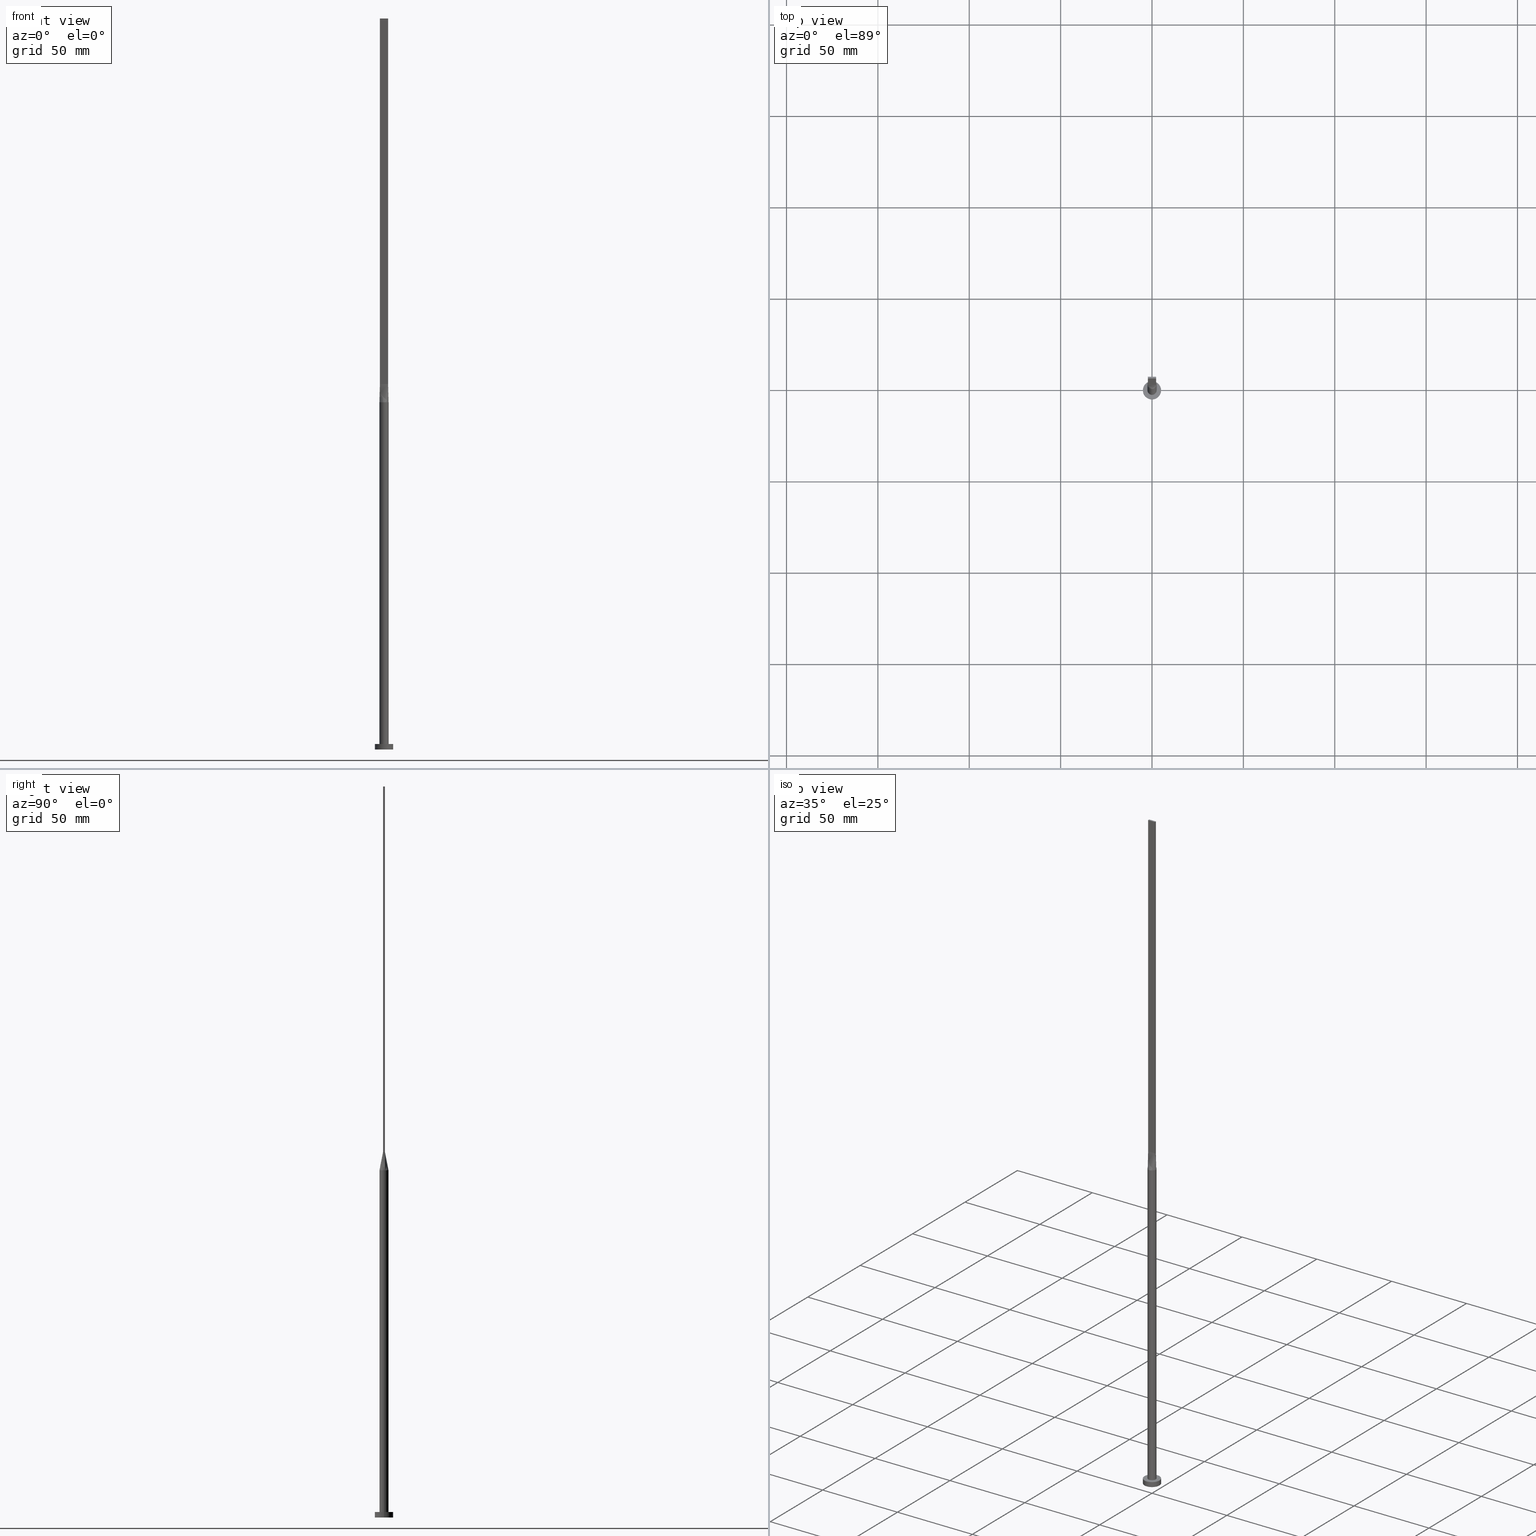
[diagram: canonical four-view strip — front | top / right | iso, engineering-drawing reading convention]
A machine part, canonical four-view strip (front | top / right | iso — engineering-drawing reading convention). The complete STEP part file that produces these views, byte-faithful:
ISO-10303-21;
HEADER;
FILE_DESCRIPTION (( 'STEP AP203' ),
    '1' );
FILE_NAME ('1aa9.STEP',
    '2023-02-13T12:33:52',
    ( '' ),
    ( '' ),
    'SwSTEP 2.0',
    'SolidWorks 2019',
    '' );
FILE_SCHEMA (( 'CONFIG_CONTROL_DESIGN' ));
ENDSEC;

DATA;
#1 = PERSON_AND_ORGANIZATION ( #420, #23 ) ;
#2 = CARTESIAN_POINT ( 'NONE',  ( 1.935644909179608186, 1.608159499248285051, 189.9999999999999432 ) ) ;
#3 = ORIENTED_EDGE ( 'NONE', *, *, #400, .T. ) ;
#4 = VECTOR ( 'NONE', #328, 1000.000000000000114 ) ;
#5 = APPROVAL_ROLE ( '' ) ;
#6 = CARTESIAN_POINT ( 'NONE',  ( 2.249999999999999556, -0.1666666666666666574, 200.0000000000000000 ) ) ;
#7 = ORIENTED_EDGE ( 'NONE', *, *, #525, .T. ) ;
#8 = CARTESIAN_POINT ( 'NONE',  ( -1.312500000000000888, 0.5000000000000002220, 200.0000000000000000 ) ) ;
#9 = ORIENTED_EDGE ( 'NONE', *, *, #10, .T. ) ;
#10 = EDGE_CURVE ( 'NONE', #188, #37, #457, .T. ) ;
#11 = CARTESIAN_POINT ( 'NONE',  ( -2.249999999999999556, 0.5000000000000002220, 200.0000000000000000 ) ) ;
#12 = ORIENTED_EDGE ( 'NONE', *, *, #245, .T. ) ;
#13 = FACE_OUTER_BOUND ( 'NONE', #323, .T. ) ;
#14 =( GEOMETRIC_REPRESENTATION_CONTEXT ( 3 ) GLOBAL_UNCERTAINTY_ASSIGNED_CONTEXT ( ( #272 ) ) GLOBAL_UNIT_ASSIGNED_CONTEXT ( ( #439, #162, #123 ) ) REPRESENTATION_CONTEXT ( 'NONE', 'WORKASPACE' ) );
#15 = EDGE_LOOP ( 'NONE', ( #265, #181, #521, #360 ) ) ;
#16 = CARTESIAN_POINT ( 'NONE',  ( 0.000000000000000000, 0.000000000000000000, 3.000000000000000000 ) ) ;
#17 = ADVANCED_FACE ( 'NONE', ( #54 ), #324, .T. ) ;
#18 = DIRECTION ( 'NONE',  ( 0.000000000000000000, -1.000000000000000000, 0.000000000000000000 ) ) ;
#19 = CARTESIAN_POINT ( 'NONE',  ( -2.249999999999999556, 0.5000000000000002220, 400.0000000000000000 ) ) ;
#20 = CARTESIAN_POINT ( 'NONE',  ( 1.935644909179608852, -1.608159499248284829, 190.0000000000000000 ) ) ;
#21 = DIRECTION ( 'NONE',  ( 1.000000000000000000, 0.000000000000000000, -0.000000000000000000 ) ) ;
#22 = DIRECTION ( 'NONE',  ( 0.000000000000000000, -0.000000000000000000, -1.000000000000000000 ) ) ;
#23 = ORGANIZATION ( 'NEUR�EN�', 'NEUR�EN�', '' ) ;
#24 = CARTESIAN_POINT ( 'NONE',  ( 0.000000000000000000, 0.000000000000000000, 190.0000000000000000 ) ) ;
#25 = DIRECTION ( 'NONE',  ( 0.000000000000000000, 0.000000000000000000, 1.000000000000000000 ) ) ;
#26 = B_SPLINE_SURFACE_WITH_KNOTS ( 'NONE', 3, 1, ( 
 ( #499, #365 ),
 ( #141, #535 ),
 ( #539, #455 ),
 ( #491, #91 ),
 ( #2, #451 ),
 ( #497, #53 ),
 ( #93, #319 ),
 ( #281, #48 ),
 ( #99, #275 ),
 ( #278, #232 ),
 ( #96, #459 ),
 ( #225, #362 ),
 ( #412, #270 ),
 ( #410, #8 ),
 ( #180, #56 ),
 ( #138, #234 ),
 ( #146, #102 ),
 ( #187, #11 ) ),
 .UNSPECIFIED., .F., .F., .F.,
 ( 4, 2, 2, 2, 2, 2, 2, 2, 4 ),
 ( 2, 2 ),
 ( 0.000000000000000000, 0.1249999999999999722, 0.2500000000000000000, 0.3750000000000000000, 0.5000000000000001110, 0.6250000000000001110, 0.7500000000000000000, 0.8750000000000000000, 1.000000000000000000 ),
 ( 0.000000000000000000, 1.000000000000000000 ),
 .UNSPECIFIED. ) ;
#27 = PRODUCT_DEFINITION ( 'NEZN�M�', '', #302, #82 ) ;
#28 = CARTESIAN_POINT ( 'NONE',  ( 0.000000000000000000, 0.000000000000000000, 0.000000000000000000 ) ) ;
#29 = FACE_BOUND ( 'NONE', #574, .T. ) ;
#30 = PERSON_AND_ORGANIZATION_ROLE ( 'design_owner' ) ;
#31 = CARTESIAN_POINT ( 'NONE',  ( -1.519400572660313253, 2.006070808634367264, 190.0000000000000284 ) ) ;
#32 = AXIS2_PLACEMENT_3D ( 'NONE', #243, #18, #22 ) ;
#33 = CIRCLE ( 'NONE', #90, 2.500000000000000000 ) ;
#34 = PERSON_AND_ORGANIZATION_ROLE ( 'creator' ) ;
#35 = DIRECTION ( 'NONE',  ( -0.000000000000000000, -0.000000000000000000, -1.000000000000000000 ) ) ;
#36 = EDGE_CURVE ( 'NONE', #103, #268, #274, .T. ) ;
#37 = VERTEX_POINT ( 'NONE', #342 ) ;
#38 = DIRECTION ( 'NONE',  ( 7.228014483236697048E-17, 1.000000000000000000, -0.000000000000000000 ) ) ;
#39 = EDGE_LOOP ( 'NONE', ( #304, #276, #190, #85 ) ) ;
#40 = COORDINATED_UNIVERSAL_TIME_OFFSET ( 1, 0, .AHEAD. ) ;
#41 = DIRECTION ( 'NONE',  ( -0.000000000000000000, -0.000000000000000000, -1.000000000000000000 ) ) ;
#42 = VECTOR ( 'NONE', #297, 1000.000000000000000 ) ;
#43 = APPROVAL_PERSON_ORGANIZATION ( #1, #101, #5 ) ;
#44 = COORDINATED_UNIVERSAL_TIME_OFFSET ( 1, 0, .AHEAD. ) ;
#45 = CARTESIAN_POINT ( 'NONE',  ( 1.935644909179608186, 1.608159499248285051, 189.9999999999999432 ) ) ;
#46 = ORIENTED_EDGE ( 'NONE', *, *, #400, .F. ) ;
#47 = CC_DESIGN_PERSON_AND_ORGANIZATION_ASSIGNMENT ( #391, #176, ( #302 ) ) ;
#48 = CARTESIAN_POINT ( 'NONE',  ( 0.3749999999999979461, 0.5000000000000002220, 200.0000000000000000 ) ) ;
#49 = ORIENTED_EDGE ( 'NONE', *, *, #10, .F. ) ;
#50 = CARTESIAN_POINT ( 'NONE',  ( 2.250000000000000000, -0.3333333333333332593, 200.0000000000000000 ) ) ;
#51 = CARTESIAN_POINT ( 'NONE',  ( -2.479683336734391563, 0.3658555563113465858, 190.0000000000000000 ) ) ;
#52 = APPROVAL_PERSON_ORGANIZATION ( #299, #150, #576 ) ;
#53 = CARTESIAN_POINT ( 'NONE',  ( 0.9374999999999978906, 0.5000000000000002220, 200.0000000000000000 ) ) ;
#54 = FACE_OUTER_BOUND ( 'NONE', #159, .T. ) ;
#55 = EDGE_CURVE ( 'NONE', #363, #103, #251, .T. ) ;
#56 = CARTESIAN_POINT ( 'NONE',  ( -1.500000000000000666, 0.5000000000000002220, 200.0000000000000000 ) ) ;
#57 = ORIENTED_EDGE ( 'NONE', *, *, #55, .F. ) ;
#58 = PERSON_AND_ORGANIZATION_ROLE ( 'classification_officer' ) ;
#59 = DIRECTION ( 'NONE',  ( 1.000000000000000000, 0.000000000000000000, 0.000000000000000000 ) ) ;
#60 = ORIENTED_EDGE ( 'NONE', *, *, #463, .F. ) ;
#61 = ADVANCED_FACE ( 'NONE', ( #375 ), #421, .F. ) ;
#62 = CYLINDRICAL_SURFACE ( 'NONE', #575, 2.500000000000000000 ) ;
#63 = CIRCLE ( 'NONE', #387, 2.500000000000000000 ) ;
#64 = CARTESIAN_POINT ( 'NONE',  ( -2.440467650459882343, -0.5423261445466400765, 190.0000000000000000 ) ) ;
#65 = CARTESIAN_POINT ( 'NONE',  ( 0.000000000000000000, 0.000000000000000000, 190.0000000000000000 ) ) ;
#66 = CARTESIAN_POINT ( 'NONE',  ( -0.6674771052374477431, -2.430579781493059865, 190.0000000000000284 ) ) ;
#67 = DIRECTION ( 'NONE',  ( -0.000000000000000000, -0.000000000000000000, -1.000000000000000000 ) ) ;
#68 = CARTESIAN_POINT ( 'NONE',  ( -2.249999999999999556, 0.5000000000000002220, 200.0000000000000000 ) ) ;
#69 = DIRECTION ( 'NONE',  ( 1.000000000000000000, 0.000000000000000000, 0.000000000000000000 ) ) ;
#70 = CARTESIAN_POINT ( 'NONE',  ( 0.000000000000000000, 0.000000000000000000, 190.0000000000000000 ) ) ;
#71 = AXIS2_PLACEMENT_3D ( 'NONE', #392, #169, #260 ) ;
#72 = ADVANCED_FACE ( 'NONE', ( #29, #428 ), #298, .T. ) ;
#73 = CARTESIAN_POINT ( 'NONE',  ( 2.249999999999999556, 0.5000000000000002220, 200.0000000000000000 ) ) ;
#74 = CARTESIAN_POINT ( 'NONE',  ( -1.935644909179609297, -1.608159499248284829, 190.0000000000000000 ) ) ;
#75 = CARTESIAN_POINT ( 'NONE',  ( -2.500000000000000000, 0.000000000000000000, 3.000000000000000000 ) ) ;
#76 = EDGE_CURVE ( 'NONE', #348, #122, #406, .T. ) ;
#77 = CARTESIAN_POINT ( 'NONE',  ( -2.249999999999999556, 0.5000000000000002220, 400.0000000000000000 ) ) ;
#78 = FACE_OUTER_BOUND ( 'NONE', #393, .T. ) ;
#79 = VECTOR ( 'NONE', #214, 1000.000000000000000 ) ;
#80 = CARTESIAN_POINT ( 'NONE',  ( -2.249999999999999556, 0.5000000000000002220, 400.0000000000000000 ) ) ;
#81 = ORIENTED_EDGE ( 'NONE', *, *, #236, .T. ) ;
#82 = DESIGN_CONTEXT ( 'detailed design', #445, 'design' ) ;
#83 = CALENDAR_DATE ( 2023, 13, 2 ) ;
#84 = CARTESIAN_POINT ( 'NONE',  ( 2.250000000000000000, -0.4999999999999997780, 400.0000000000000000 ) ) ;
#85 = ORIENTED_EDGE ( 'NONE', *, *, #166, .T. ) ;
#86 = APPROVAL_ROLE ( '' ) ;
#87 = CARTESIAN_POINT ( 'NONE',  ( -2.250000000000000000, -0.4999999999999994449, 400.0000000000000000 ) ) ;
#88 = ORIENTED_EDGE ( 'NONE', *, *, #76, .F. ) ;
#89 = EDGE_CURVE ( 'NONE', #405, #103, #479, .T. ) ;
#90 = AXIS2_PLACEMENT_3D ( 'NONE', #16, #200, #380 ) ;
#91 = CARTESIAN_POINT ( 'NONE',  ( 1.499999999999998446, 0.5000000000000002220, 200.0000000000000000 ) ) ;
#92 = ORIENTED_EDGE ( 'NONE', *, *, #269, .T. ) ;
#93 = CARTESIAN_POINT ( 'NONE',  ( 1.260416918790968843, 2.182794756967427752, 190.0000000000000000 ) ) ;
#94 = CARTESIAN_POINT ( 'NONE',  ( -2.250000000000000000, -0.4999999999999993339, 200.0000000000000000 ) ) ;
#95 = ADVANCED_FACE ( 'NONE', ( #204 ), #333, .T. ) ;
#96 = CARTESIAN_POINT ( 'NONE',  ( -0.6674771052374470770, 2.430579781493059421, 190.0000000000000000 ) ) ;
#97 = EDGE_LOOP ( 'NONE', ( #545, #223 ) ) ;
#98 = AXIS2_PLACEMENT_3D ( 'NONE', #399, #38, #177 ) ;
#99 = CARTESIAN_POINT ( 'NONE',  ( 0.3342381693191150416, 2.499999999999999556, 190.0000000000000000 ) ) ;
#100 = ORIENTED_EDGE ( 'NONE', *, *, #192, .T. ) ;
#101 = APPROVAL ( #578, 'NEUR�EN�' ) ;
#102 = CARTESIAN_POINT ( 'NONE',  ( -2.062499999999999556, 0.5000000000000002220, 200.0000000000000000 ) ) ;
#103 = VERTEX_POINT ( 'NONE', #68 ) ;
#104 = DIRECTION ( 'NONE',  ( -1.000000000000000000, 0.000000000000000000, 0.000000000000000000 ) ) ;
#105 = CARTESIAN_POINT ( 'NONE',  ( -2.479683336734392007, -0.3658555563113460307, 190.0000000000000000 ) ) ;
#106 = CC_DESIGN_PERSON_AND_ORGANIZATION_ASSIGNMENT ( #315, #58, ( #524 ) ) ;
#107 = VECTOR ( 'NONE', #41, 1000.000000000000000 ) ;
#108 = DIRECTION ( 'NONE',  ( -0.01904314058352513453, 0.004231809018561169533, 0.9998097071888962795 ) ) ;
#109 = AXIS2_PLACEMENT_3D ( 'NONE', #65, #512, #116 ) ;
#110 = CARTESIAN_POINT ( 'NONE',  ( -1.875000000000000444, -0.4999999999999995559, 200.0000000000000000 ) ) ;
#111 = DIRECTION ( 'NONE',  ( 1.000000000000000000, 0.000000000000000000, 0.000000000000000000 ) ) ;
#112 = CARTESIAN_POINT ( 'NONE',  ( 0.9374999999999997780, -0.4999999999999995559, 200.0000000000000000 ) ) ;
#113 = FACE_OUTER_BOUND ( 'NONE', #460, .T. ) ;
#114 = EDGE_CURVE ( 'NONE', #462, #405, #336, .T. ) ;
#115 = CARTESIAN_POINT ( 'NONE',  ( 2.093723281432890548, -1.388001797188530340, 190.0000000000000000 ) ) ;
#116 = DIRECTION ( 'NONE',  ( -1.000000000000000000, 0.000000000000000000, 0.000000000000000000 ) ) ;
#117 = CARTESIAN_POINT ( 'NONE',  ( -2.062500000000000000, -0.4999999999999995559, 200.0000000000000000 ) ) ;
#118 = CIRCLE ( 'NONE', #71, 5.000000000000000000 ) ;
#119 = DIRECTION ( 'NONE',  ( 1.000000000000000000, 0.000000000000000000, 0.000000000000000000 ) ) ;
#120 = CARTESIAN_POINT ( 'NONE',  ( -0.9375000000000006661, -0.4999999999999995559, 200.0000000000000000 ) ) ;
#121 = CARTESIAN_POINT ( 'NONE',  ( 2.249999999999999556, 0.5000000000000002220, 200.0000000000000000 ) ) ;
#122 = VERTEX_POINT ( 'NONE', #522 ) ;
#123 =( NAMED_UNIT ( * ) SI_UNIT ( $, .STERADIAN. ) SOLID_ANGLE_UNIT ( ) );
#124 = CARTESIAN_POINT ( 'NONE',  ( -1.260416918790968843, 2.182794756967428196, 190.0000000000000284 ) ) ;
#125 = AXIS2_PLACEMENT_3D ( 'NONE', #19, #221, #566 ) ;
#126 = ORIENTED_EDGE ( 'NONE', *, *, #571, .T. ) ;
#127 = PERSON_AND_ORGANIZATION ( #420, #23 ) ;
#128 = LINE ( 'NONE', #218, #434 ) ;
#129 = ORIENTED_EDGE ( 'NONE', *, *, #261, .T. ) ;
#130 = CARTESIAN_POINT ( 'NONE',  ( 0.000000000000000000, 0.000000000000000000, 3.000000000000000000 ) ) ;
#131 = PLANE ( 'NONE',  #210 ) ;
#132 = CC_DESIGN_PERSON_AND_ORGANIZATION_ASSIGNMENT ( #127, #30, ( #558 ) ) ;
#133 = EDGE_LOOP ( 'NONE', ( #357, #396, #81, #570, #484 ) ) ;
#134 = CARTESIAN_POINT ( 'NONE',  ( 2.500000000000000000, 3.061616997868383141E-16, 190.0000000000000000 ) ) ;
#135 = EDGE_LOOP ( 'NONE', ( #100, #12, #492, #438 ) ) ;
#136 = VECTOR ( 'NONE', #196, 1000.000000000000000 ) ;
#137 = VECTOR ( 'NONE', #481, 1000.000000000000114 ) ;
#138 = CARTESIAN_POINT ( 'NONE',  ( -2.323660390030918510, 0.9543733860570832173, 190.0000000000000284 ) ) ;
#139 = EDGE_LOOP ( 'NONE', ( #174, #403, #540, #320 ) ) ;
#140 = EDGE_CURVE ( 'NONE', #229, #188, #172, .T. ) ;
#141 = CARTESIAN_POINT ( 'NONE',  ( 2.396350003401058526, 0.7408555563113465858, 190.0000000000000568 ) ) ;
#142 = EDGE_LOOP ( 'NONE', ( #306, #179, #57, #215 ) ) ;
#143 = DIRECTION ( 'NONE',  ( 0.000000000000000000, 0.000000000000000000, 1.000000000000000000 ) ) ;
#144 = ORIENTED_EDGE ( 'NONE', *, *, #339, .T. ) ;
#145 = AXIS2_PLACEMENT_3D ( 'NONE', #371, #148, #358 ) ;
#146 = CARTESIAN_POINT ( 'NONE',  ( -2.396350003401058082, 0.7408555563113466969, 190.0000000000000284 ) ) ;
#147 = ORIENTED_EDGE ( 'NONE', *, *, #339, .F. ) ;
#148 = DIRECTION ( 'NONE',  ( 0.000000000000000000, 0.000000000000000000, 1.000000000000000000 ) ) ;
#149 = CARTESIAN_POINT ( 'NONE',  ( -2.249999999999999556, 0.5000000000000002220, 200.0000000000000000 ) ) ;
#150 = APPROVAL ( #397, 'NEUR�EN�' ) ;
#151 = DIRECTION ( 'NONE',  ( 0.000000000000000000, 0.000000000000000000, 1.000000000000000000 ) ) ;
#152 = DIRECTION ( 'NONE',  ( 0.000000000000000000, 0.000000000000000000, 1.000000000000000000 ) ) ;
#153 = VECTOR ( 'NONE', #562, 1000.000000000000000 ) ;
#154 = CARTESIAN_POINT ( 'NONE',  ( -2.440694335308545071, 0.5423767520433731004, 190.0000000000000000 ) ) ;
#155 = CARTESIAN_POINT ( 'NONE',  ( 0.6674771052374466329, -2.430579781493059865, 190.0000000000000000 ) ) ;
#156 = ADVANCED_FACE ( 'NONE', ( #577 ), #209, .T. ) ;
#157 = DIRECTION ( 'NONE',  ( 0.000000000000000000, 0.000000000000000000, 1.000000000000000000 ) ) ;
#158 = CARTESIAN_POINT ( 'NONE',  ( 2.396350003401058526, 0.7408555563113465858, 190.0000000000000568 ) ) ;
#159 = EDGE_LOOP ( 'NONE', ( #301, #279, #60, #220, #226 ) ) ;
#160 = PLANE ( 'NONE',  #509 ) ;
#161 = CARTESIAN_POINT ( 'NONE',  ( 0.1875000000000000555, -0.4999999999999995559, 200.0000000000000284 ) ) ;
#162 =( NAMED_UNIT ( * ) PLANE_ANGLE_UNIT ( ) SI_UNIT ( $, .RADIAN. ) );
#163 = VECTOR ( 'NONE', #373, 1000.000000000000000 ) ;
#164 = CARTESIAN_POINT ( 'NONE',  ( -1.312500000000000444, -0.4999999999999995559, 200.0000000000000000 ) ) ;
#165 = CIRCLE ( 'NONE', #293, 2.500000000000000000 ) ;
#166 = EDGE_CURVE ( 'NONE', #409, #363, #526, .T. ) ;
#167 = DIRECTION ( 'NONE',  ( -1.000000000000000000, 0.000000000000000000, 0.000000000000000000 ) ) ;
#168 = CARTESIAN_POINT ( 'NONE',  ( -2.440688158044365785, -0.5423755258804862089, 190.0000000000000000 ) ) ;
#169 = DIRECTION ( 'NONE',  ( 0.000000000000000000, 0.000000000000000000, 1.000000000000000000 ) ) ;
#170 = EDGE_LOOP ( 'NONE', ( #3, #527, #147, #488 ) ) ;
#171 = DIRECTION ( 'NONE',  ( -0.000000000000000000, -0.000000000000000000, -1.000000000000000000 ) ) ;
#172 = LINE ( 'NONE', #437, #79 ) ;
#173 = AXIS2_PLACEMENT_3D ( 'NONE', #472, #424, #291 ) ;
#174 = ORIENTED_EDGE ( 'NONE', *, *, #36, .T. ) ;
#175 = EDGE_CURVE ( 'NONE', #581, #496, #355, .T. ) ;
#176 = PERSON_AND_ORGANIZATION_ROLE ( 'creator' ) ;
#177 = DIRECTION ( 'NONE',  ( -1.000000000000000000, 7.228014483236697048E-17, 0.000000000000000000 ) ) ;
#178 = CARTESIAN_POINT ( 'NONE',  ( -2.093723281432891437, 1.388001797188529451, 190.0000000000000284 ) ) ;
#179 = ORIENTED_EDGE ( 'NONE', *, *, #89, .T. ) ;
#180 = CARTESIAN_POINT ( 'NONE',  ( -2.093723281432891437, 1.388001797188529451, 190.0000000000000284 ) ) ;
#181 = ORIENTED_EDGE ( 'NONE', *, *, #175, .T. ) ;
#182 = EDGE_CURVE ( 'NONE', #122, #465, #530, .T. ) ;
#183 = VECTOR ( 'NONE', #502, 1000.000000000000000 ) ;
#184 = CALENDAR_DATE ( 2023, 13, 2 ) ;
#185 = CARTESIAN_POINT ( 'NONE',  ( 2.499291179871646396, 0.1829277781556730154, 190.0000000000000000 ) ) ;
#186 = ORIENTED_EDGE ( 'NONE', *, *, #563, .F. ) ;
#187 = CARTESIAN_POINT ( 'NONE',  ( -2.440467650459882343, 0.5423261445466395214, 190.0000000000000000 ) ) ;
#188 = VERTEX_POINT ( 'NONE', #483 ) ;
#189 = DIRECTION ( 'NONE',  ( 0.000000000000000000, 0.000000000000000000, 1.000000000000000000 ) ) ;
#190 = ORIENTED_EDGE ( 'NONE', *, *, #192, .F. ) ;
#191 = VECTOR ( 'NONE', #35, 1000.000000000000000 ) ;
#192 = EDGE_CURVE ( 'NONE', #409, #449, #128, .T. ) ;
#193 = PLANE ( 'NONE',  #145 ) ;
#194 = ORIENTED_EDGE ( 'NONE', *, *, #280, .F. ) ;
#195 = CYLINDRICAL_SURFACE ( 'NONE', #516, 5.000000000000000000 ) ;
#196 = DIRECTION ( 'NONE',  ( -1.000000000000000000, -0.000000000000000000, -0.000000000000000000 ) ) ;
#197 = DIRECTION ( 'NONE',  ( 1.000000000000000000, 0.000000000000000000, 0.000000000000000000 ) ) ;
#198 = CARTESIAN_POINT ( 'NONE',  ( 1.312499999999999778, -0.4999999999999996669, 200.0000000000000000 ) ) ;
#199 = VECTOR ( 'NONE', #108, 1000.000000000000114 ) ;
#200 = DIRECTION ( 'NONE',  ( 0.000000000000000000, 0.000000000000000000, 1.000000000000000000 ) ) ;
#201 = CARTESIAN_POINT ( 'NONE',  ( -0.3750000000000002220, -0.4999999999999995559, 200.0000000000000000 ) ) ;
#202 = CC_DESIGN_DATE_AND_TIME_ASSIGNMENT ( #237, #458, ( #524 ) ) ;
#203 = CARTESIAN_POINT ( 'NONE',  ( 5.000000000000000000, 6.123233995736766282E-16, 0.000000000000000000 ) ) ;
#204 = FACE_OUTER_BOUND ( 'NONE', #170, .T. ) ;
#205 = CARTESIAN_POINT ( 'NONE',  ( 0.000000000000000000, 0.000000000000000000, 190.0000000000000000 ) ) ;
#206 = DIRECTION ( 'NONE',  ( -4.336808689942019708E-16, -1.000000000000000000, 0.000000000000000000 ) ) ;
#207 = LINE ( 'NONE', #77, #42 ) ;
#208 = AXIS2_PLACEMENT_3D ( 'NONE', #248, #25, #549 ) ;
#209 = CYLINDRICAL_SURFACE ( 'NONE', #256, 5.000000000000000000 ) ;
#210 = AXIS2_PLACEMENT_3D ( 'NONE', #84, #308, #489 ) ;
#211 = DATE_AND_TIME ( #480, #378 ) ;
#212 = CARTESIAN_POINT ( 'NONE',  ( -5.000000000000000000, 0.000000000000000000, 0.000000000000000000 ) ) ;
#213 = CALENDAR_DATE ( 2023, 13, 2 ) ;
#214 = DIRECTION ( 'NONE',  ( 1.000000000000000000, -7.228014483236697048E-17, 0.000000000000000000 ) ) ;
#215 = ORIENTED_EDGE ( 'NONE', *, *, #236, .F. ) ;
#216 = ADVANCED_FACE ( 'NONE', ( #78 ), #305, .F. ) ;
#217 = MECHANICAL_CONTEXT ( 'NONE', #414, 'mechanical' ) ;
#218 = CARTESIAN_POINT ( 'NONE',  ( 2.249999999999999556, 0.5000000000000002220, 400.0000000000000000 ) ) ;
#219 = AXIS2_PLACEMENT_3D ( 'NONE', #28, #385, #69 ) ;
#220 = ORIENTED_EDGE ( 'NONE', *, *, #36, .F. ) ;
#221 = DIRECTION ( 'NONE',  ( 1.000000000000000000, -4.336808689942020201E-16, 0.000000000000000000 ) ) ;
#222 = CARTESIAN_POINT ( 'NONE',  ( 1.260416918790968843, 2.182794756967427752, 190.0000000000000000 ) ) ;
#223 = ORIENTED_EDGE ( 'NONE', *, *, #318, .T. ) ;
#224 = ADVANCED_FACE ( 'NONE', ( #486 ), #131, .F. ) ;
#225 = CARTESIAN_POINT ( 'NONE',  ( -1.260416918790968843, 2.182794756967428196, 190.0000000000000284 ) ) ;
#226 = ORIENTED_EDGE ( 'NONE', *, *, #89, .F. ) ;
#227 = DATE_AND_TIME ( #231, #379 ) ;
#228 = FACE_OUTER_BOUND ( 'NONE', #133, .T. ) ;
#229 = VERTEX_POINT ( 'NONE', #87 ) ;
#230 = APPROVAL_PERSON_ORGANIZATION ( #266, #296, #86 ) ;
#231 = CALENDAR_DATE ( 2023, 13, 2 ) ;
#232 = CARTESIAN_POINT ( 'NONE',  ( -0.1875000000000020539, 0.5000000000000002220, 200.0000000000000000 ) ) ;
#233 = CARTESIAN_POINT ( 'NONE',  ( -2.499291179871646840, -0.1829277781556729043, 190.0000000000000000 ) ) ;
#234 = CARTESIAN_POINT ( 'NONE',  ( -1.875000000000000000, 0.5000000000000002220, 200.0000000000000000 ) ) ;
#235 = ORIENTED_EDGE ( 'NONE', *, *, #487, .F. ) ;
#236 = EDGE_CURVE ( 'NONE', #462, #363, #448, .T. ) ;
#237 = DATE_AND_TIME ( #184, #277 ) ;
#238 = CARTESIAN_POINT ( 'NONE',  ( 2.440706242928429415, -0.5423794613208688942, 190.0000000000000000 ) ) ;
#239 = B_SPLINE_SURFACE_WITH_KNOTS ( 'NONE', 3, 1, ( 
 ( #495, #273 ),
 ( #453, #50 ),
 ( #407, #6 ),
 ( #185, #316 ),
 ( #294, #376 ),
 ( #467, #73 ) ),
 .UNSPECIFIED., .F., .F., .F.,
 ( 4, 2, 4 ),
 ( 2, 2 ),
 ( 0.000000000000000000, 0.5000000000000000000, 1.000000000000000000 ),
 ( 0.000000000000000000, 1.000000000000000000 ),
 .UNSPECIFIED. ) ;
#240 = VERTEX_POINT ( 'NONE', #75 ) ;
#241 = AXIS2_PLACEMENT_3D ( 'NONE', #548, #151, #506 ) ;
#242 = CARTESIAN_POINT ( 'NONE',  ( -5.000000000000000000, 0.000000000000000000, 3.000000000000000000 ) ) ;
#243 = CARTESIAN_POINT ( 'NONE',  ( 2.249999999999999556, 0.5000000000000002220, 400.0000000000000000 ) ) ;
#244 = FACE_OUTER_BOUND ( 'NONE', #139, .T. ) ;
#245 = EDGE_CURVE ( 'NONE', #449, #229, #520, .T. ) ;
#246 = CARTESIAN_POINT ( 'NONE',  ( 0.7499999999999996669, -0.4999999999999995559, 200.0000000000000000 ) ) ;
#247 = CYLINDRICAL_SURFACE ( 'NONE', #109, 2.500000000000000000 ) ;
#248 = CARTESIAN_POINT ( 'NONE',  ( 0.000000000000000000, 0.000000000000000000, 3.000000000000000000 ) ) ;
#249 = AXIS2_PLACEMENT_3D ( 'NONE', #461, #189, #59 ) ;
#250 = DIRECTION ( 'NONE',  ( 0.000000000000000000, 0.000000000000000000, 1.000000000000000000 ) ) ;
#251 = LINE ( 'NONE', #511, #136 ) ;
#252 = CARTESIAN_POINT ( 'NONE',  ( 0.000000000000000000, 0.000000000000000000, 190.0000000000000000 ) ) ;
#253 = CARTESIAN_POINT ( 'NONE',  ( 1.260416918790968399, -2.182794756967428640, 190.0000000000000284 ) ) ;
#254 = CC_DESIGN_DATE_AND_TIME_ASSIGNMENT ( #446, #394, ( #27 ) ) ;
#255 = DIRECTION ( 'NONE',  ( -4.336808689942019708E-16, -1.000000000000000000, 0.000000000000000000 ) ) ;
#256 = AXIS2_PLACEMENT_3D ( 'NONE', #567, #351, #167 ) ;
#257 = CARTESIAN_POINT ( 'NONE',  ( -2.323660390030918510, 0.9543733860570832173, 190.0000000000000284 ) ) ;
#258 = ORIENTED_EDGE ( 'NONE', *, *, #518, .T. ) ;
#259 = APPROVAL_STATUS ( 'not_yet_approved' ) ;
#260 = DIRECTION ( 'NONE',  ( 1.000000000000000000, 0.000000000000000000, 0.000000000000000000 ) ) ;
#261 = EDGE_CURVE ( 'NONE', #37, #363, #433, .T. ) ;
#262 = VERTEX_POINT ( 'NONE', #212 ) ;
#263 = DATE_AND_TIME ( #83, #490 ) ;
#264 = CARTESIAN_POINT ( 'NONE',  ( 0.3342381693191150416, 2.499999999999999556, 190.0000000000000000 ) ) ;
#265 = ORIENTED_EDGE ( 'NONE', *, *, #318, .F. ) ;
#266 = PERSON_AND_ORGANIZATION ( #420, #23 ) ;
#267 = CARTESIAN_POINT ( 'NONE',  ( -2.396350003401058082, 0.7408555563113466969, 190.0000000000000284 ) ) ;
#268 = VERTEX_POINT ( 'NONE', #569 ) ;
#269 = EDGE_CURVE ( 'NONE', #262, #496, #118, .T. ) ;
#270 = CARTESIAN_POINT ( 'NONE',  ( -0.9375000000000015543, 0.5000000000000002220, 200.0000000000000000 ) ) ;
#271 = ORIENTED_EDGE ( 'NONE', *, *, #114, .F. ) ;
#272 = UNCERTAINTY_MEASURE_WITH_UNIT (LENGTH_MEASURE( 1.000000000000000082E-05 ), #439, 'distance_accuracy_value', 'NONE');
#273 = CARTESIAN_POINT ( 'NONE',  ( 2.250000000000000000, -0.4999999999999997780, 200.0000000000000000 ) ) ;
#274 = LINE ( 'NONE', #454, #311 ) ;
#275 = CARTESIAN_POINT ( 'NONE',  ( 0.1874999999999980016, 0.5000000000000002220, 200.0000000000000000 ) ) ;
#276 = ORIENTED_EDGE ( 'NONE', *, *, #579, .F. ) ;
#277 = LOCAL_TIME ( 13, 33, 52.00000000000000000, #450 ) ;
#278 = CARTESIAN_POINT ( 'NONE',  ( -0.3342381693191151526, 2.499999999999999556, 190.0000000000000568 ) ) ;
#279 = ORIENTED_EDGE ( 'NONE', *, *, #542, .T. ) ;
#280 = EDGE_CURVE ( 'NONE', #188, #409, #395, .T. ) ;
#281 = CARTESIAN_POINT ( 'NONE',  ( 0.6674771052374470770, 2.430579781493058977, 189.9999999999999432 ) ) ;
#282 = ORIENTED_EDGE ( 'NONE', *, *, #563, .T. ) ;
#283 = DIRECTION ( 'NONE',  ( -1.000000000000000000, 0.000000000000000000, 0.000000000000000000 ) ) ;
#284 = CARTESIAN_POINT ( 'NONE',  ( -2.250000000000000000, -0.3333333333333326487, 200.0000000000000000 ) ) ;
#285 = VECTOR ( 'NONE', #513, 1000.000000000000114 ) ;
#286 = ADVANCED_FACE ( 'NONE', ( #404 ), #26, .T. ) ;
#287 = CARTESIAN_POINT ( 'NONE',  ( 0.000000000000000000, 0.000000000000000000, 3.000000000000000000 ) ) ;
#288 = CARTESIAN_POINT ( 'NONE',  ( -1.260416918790969509, -2.182794756967427752, 190.0000000000000000 ) ) ;
#289 = CARTESIAN_POINT ( 'NONE',  ( -2.345233825229941171, -0.5211630722733197052, 195.0000000000000000 ) ) ;
#290 = CARTESIAN_POINT ( 'NONE',  ( 2.440467650459881899, -0.5423261445466405206, 190.0000000000000000 ) ) ;
#291 = DIRECTION ( 'NONE',  ( 1.000000000000000000, 0.000000000000000000, 0.000000000000000000 ) ) ;
#292 = CARTESIAN_POINT ( 'NONE',  ( 2.093723281432890104, 1.388001797188529007, 190.0000000000000000 ) ) ;
#293 = AXIS2_PLACEMENT_3D ( 'NONE', #130, #307, #349 ) ;
#294 = CARTESIAN_POINT ( 'NONE',  ( 2.479683336734391563, 0.3658555563113463638, 190.0000000000000000 ) ) ;
#295 = CARTESIAN_POINT ( 'NONE',  ( 1.499999999999999778, -0.4999999999999997780, 200.0000000000000000 ) ) ;
#296 = APPROVAL ( #259, 'NEUR�EN�' ) ;
#297 = DIRECTION ( 'NONE',  ( -0.000000000000000000, -0.000000000000000000, -1.000000000000000000 ) ) ;
#298 = PLANE ( 'NONE',  #208 ) ;
#299 = PERSON_AND_ORGANIZATION ( #420, #23 ) ;
#300 = DIRECTION ( 'NONE',  ( -4.336808689942017736E-16, 1.000000000000000000, -0.000000000000000000 ) ) ;
#301 = ORIENTED_EDGE ( 'NONE', *, *, #431, .T. ) ;
#302 = PRODUCT_DEFINITION_FORMATION_WITH_SPECIFIED_SOURCE ( 'LIBOVOLN�', '', #558, .NOT_KNOWN. ) ;
#303 = DIRECTION ( 'NONE',  ( -0.000000000000000000, -0.000000000000000000, -1.000000000000000000 ) ) ;
#304 = ORIENTED_EDGE ( 'NONE', *, *, #55, .T. ) ;
#305 = PLANE ( 'NONE',  #98 ) ;
#306 = ORIENTED_EDGE ( 'NONE', *, *, #114, .T. ) ;
#307 = DIRECTION ( 'NONE',  ( 0.000000000000000000, 0.000000000000000000, 1.000000000000000000 ) ) ;
#308 = DIRECTION ( 'NONE',  ( -1.000000000000000000, -4.336808689942017736E-16, 0.000000000000000000 ) ) ;
#309 = ORIENTED_EDGE ( 'NONE', *, *, #269, .F. ) ;
#310 = CARTESIAN_POINT ( 'NONE',  ( 2.345233825229940283, 0.5211630722733202603, 195.0000000000000000 ) ) ;
#311 = VECTOR ( 'NONE', #206, 1000.000000000000000 ) ;
#312 = CC_DESIGN_APPROVAL ( #296, ( #27 ) ) ;
#313 = CARTESIAN_POINT ( 'NONE',  ( -2.499645589935823420, -1.700711608024726496E-15, 190.0000000000000000 ) ) ;
#314 = ORIENTED_EDGE ( 'NONE', *, *, #493, .F. ) ;
#315 = PERSON_AND_ORGANIZATION ( #420, #23 ) ;
#316 = CARTESIAN_POINT ( 'NONE',  ( 2.249999999999999556, 0.1666666666666666574, 200.0000000000000000 ) ) ;
#317 = ORIENTED_EDGE ( 'NONE', *, *, #542, .F. ) ;
#318 = EDGE_CURVE ( 'NONE', #581, #482, #565, .T. ) ;
#319 = CARTESIAN_POINT ( 'NONE',  ( 0.7499999999999978906, 0.5000000000000002220, 200.0000000000000000 ) ) ;
#320 = ORIENTED_EDGE ( 'NONE', *, *, #579, .T. ) ;
#321 = VECTOR ( 'NONE', #300, 1000.000000000000000 ) ;
#322 = CARTESIAN_POINT ( 'NONE',  ( -2.250000000000000000, -0.4999999999999994449, 200.0000000000000000 ) ) ;
#323 = EDGE_LOOP ( 'NONE', ( #309, #314 ) ) ;
#324 = B_SPLINE_SURFACE_WITH_KNOTS ( 'NONE', 3, 1, ( 
 ( #547, #149 ),
 ( #51, #538 ),
 ( #326, #505 ),
 ( #233, #366 ),
 ( #105, #284 ),
 ( #64, #94 ) ),
 .UNSPECIFIED., .F., .F., .F.,
 ( 4, 2, 4 ),
 ( 2, 2 ),
 ( 0.000000000000000000, 0.5000000000000000000, 1.000000000000000000 ),
 ( 0.000000000000000000, 1.000000000000000000 ),
 .UNSPECIFIED. ) ;
#325 = CARTESIAN_POINT ( 'NONE',  ( -5.000000000000000000, 0.000000000000000000, 3.000000000000000000 ) ) ;
#326 = CARTESIAN_POINT ( 'NONE',  ( -2.499291179871646840, 0.1829277781556734317, 190.0000000000000000 ) ) ;
#327 = EDGE_CURVE ( 'NONE', #482, #581, #398, .T. ) ;
#328 = DIRECTION ( 'NONE',  ( -0.01904314058352517616, -0.004231809018561157390, -0.9998097071888962795 ) ) ;
#329 = CARTESIAN_POINT ( 'NONE',  ( -2.345233825229940727, 0.5211630722733198162, 195.0000000000000000 ) ) ;
#330 = VECTOR ( 'NONE', #469, 1000.000000000000000 ) ;
#331 = DIRECTION ( 'NONE',  ( 0.000000000000000000, 0.000000000000000000, 1.000000000000000000 ) ) ;
#332 = CARTESIAN_POINT ( 'NONE',  ( 2.396350003401058082, -0.7408555563113468079, 190.0000000000000284 ) ) ;
#333 = B_SPLINE_SURFACE_WITH_KNOTS ( 'NONE', 3, 1, ( 
 ( #508, #386 ),
 ( #425, #117 ),
 ( #384, #110 ),
 ( #564, #474 ),
 ( #74, #164 ),
 ( #517, #120 ),
 ( #288, #468 ),
 ( #66, #201 ),
 ( #423, #430 ),
 ( #561, #161 ),
 ( #155, #340 ),
 ( #253, #246 ),
 ( #515, #112 ),
 ( #20, #198 ),
 ( #115, #295 ),
 ( #377, #552 ),
 ( #332, #381 ),
 ( #290, #471 ) ),
 .UNSPECIFIED., .F., .F., .F.,
 ( 4, 2, 2, 2, 2, 2, 2, 2, 4 ),
 ( 2, 2 ),
 ( 0.000000000000000000, 0.1249999999999999167, 0.2499999999999998335, 0.3749999999999998335, 0.4999999999999998890, 0.6249999999999998890, 0.7499999999999998890, 0.8750000000000000000, 1.000000000000000000 ),
 ( 0.000000000000000000, 1.000000000000000000 ),
 .UNSPECIFIED. ) ;
#334 = CARTESIAN_POINT ( 'NONE',  ( 2.249999999999999556, 0.5000000000000002220, 400.0000000000000000 ) ) ;
#335 = CARTESIAN_POINT ( 'NONE',  ( 2.323660390030918954, 0.9543733860570833283, 190.0000000000000568 ) ) ;
#336 = B_SPLINE_CURVE_WITH_KNOTS ( 'NONE', 3,
 ( #557, #158, #335, #292, #45, #354, #222, #402, #264, #389, #580, #124, #31, #440, #178, #257, #267, #443 ),
 .UNSPECIFIED., .F., .F.,
 ( 4, 2, 2, 2, 2, 2, 2, 2, 4 ),
 ( 0.000000000000000000, 0.1249999999999999722, 0.2500000000000000000, 0.3750000000000000000, 0.5000000000000001110, 0.6250000000000001110, 0.7500000000000000000, 0.8750000000000000000, 1.000000000000000000 ),
 .UNSPECIFIED. ) ;
#337 = MANIFOLD_SOLID_BREP ( 'P�idat vysunut�m5', #507 ) ;
#338 = FACE_OUTER_BOUND ( 'NONE', #352, .T. ) ;
#339 = EDGE_CURVE ( 'NONE', #268, #37, #543, .T. ) ;
#340 = CARTESIAN_POINT ( 'NONE',  ( 0.3749999999999998890, -0.4999999999999995559, 200.0000000000000284 ) ) ;
#341 = ADVANCED_BREP_SHAPE_REPRESENTATION ( '1aa9', ( #337, #435 ), #14 ) ;
#342 = CARTESIAN_POINT ( 'NONE',  ( 2.250000000000000000, -0.4999999999999997780, 200.0000000000000000 ) ) ;
#343 = APPLICATION_PROTOCOL_DEFINITION ( 'international standard', 'config_control_design', 1994, #445 ) ;
#344 = CARTESIAN_POINT ( 'NONE',  ( 2.249999999999999556, 0.5000000000000002220, 400.0000000000000000 ) ) ;
#345 = ORIENTED_EDGE ( 'NONE', *, *, #182, .T. ) ;
#346 = APPROVAL_DATE_TIME ( #211, #150 ) ;
#347 = CARTESIAN_POINT ( 'NONE',  ( 5.000000000000000000, 6.123233995736766282E-16, 3.000000000000000000 ) ) ;
#348 = VERTEX_POINT ( 'NONE', #238 ) ;
#349 = DIRECTION ( 'NONE',  ( 1.000000000000000000, 0.000000000000000000, 0.000000000000000000 ) ) ;
#350 = VECTOR ( 'NONE', #171, 1000.000000000000000 ) ;
#351 = DIRECTION ( 'NONE',  ( -0.000000000000000000, -0.000000000000000000, -1.000000000000000000 ) ) ;
#352 = EDGE_LOOP ( 'NONE', ( #444, #88, #46, #317, #126, #282 ) ) ;
#353 = PERSON_AND_ORGANIZATION_ROLE ( 'design_supplier' ) ;
#354 = CARTESIAN_POINT ( 'NONE',  ( 1.519400572660313031, 2.006070808634367708, 190.0000000000000284 ) ) ;
#355 = LINE ( 'NONE', #347, #107 ) ;
#356 = CC_DESIGN_PERSON_AND_ORGANIZATION_ASSIGNMENT ( #436, #34, ( #27 ) ) ;
#357 = ORIENTED_EDGE ( 'NONE', *, *, #76, .T. ) ;
#358 = DIRECTION ( 'NONE',  ( 1.000000000000000000, 0.000000000000000000, -0.000000000000000000 ) ) ;
#359 = AXIS2_PLACEMENT_3D ( 'NONE', #546, #143, #368 ) ;
#360 = ORIENTED_EDGE ( 'NONE', *, *, #525, .F. ) ;
#361 = SHAPE_DEFINITION_REPRESENTATION ( #473, #341 ) ;
#362 = CARTESIAN_POINT ( 'NONE',  ( -0.7500000000000019984, 0.5000000000000002220, 200.0000000000000000 ) ) ;
#363 = VERTEX_POINT ( 'NONE', #415 ) ;
#364 = ADVANCED_FACE ( 'NONE', ( #13 ), #193, .F. ) ;
#365 = CARTESIAN_POINT ( 'NONE',  ( 2.249999999999999556, 0.5000000000000002220, 200.0000000000000000 ) ) ;
#366 = CARTESIAN_POINT ( 'NONE',  ( -2.249999999999999556, -0.1666666666666660468, 200.0000000000000000 ) ) ;
#367 = PRODUCT_RELATED_PRODUCT_CATEGORY ( 'detail', '', ( #558 ) ) ;
#368 = DIRECTION ( 'NONE',  ( 1.000000000000000000, 0.000000000000000000, 0.000000000000000000 ) ) ;
#369 = VERTEX_POINT ( 'NONE', #313 ) ;
#370 = CC_DESIGN_SECURITY_CLASSIFICATION ( #524, ( #302 ) ) ;
#371 = CARTESIAN_POINT ( 'NONE',  ( 0.000000000000000000, 0.000000000000000000, 0.000000000000000000 ) ) ;
#372 = ADVANCED_FACE ( 'NONE', ( #228 ), #239, .T. ) ;
#373 = DIRECTION ( 'NONE',  ( -0.000000000000000000, -0.000000000000000000, -1.000000000000000000 ) ) ;
#374 = LINE ( 'NONE', #556, #199 ) ;
#375 = FACE_OUTER_BOUND ( 'NONE', #39, .T. ) ;
#376 = CARTESIAN_POINT ( 'NONE',  ( 2.249999999999999556, 0.3333333333333333703, 200.0000000000000000 ) ) ;
#377 = CARTESIAN_POINT ( 'NONE',  ( 2.323660390030917178, -0.9543733860570838834, 190.0000000000000284 ) ) ;
#378 = LOCAL_TIME ( 13, 33, 52.00000000000000000, #44 ) ;
#379 = LOCAL_TIME ( 13, 33, 52.00000000000000000, #541 ) ;
#380 = DIRECTION ( 'NONE',  ( 1.000000000000000000, 0.000000000000000000, 0.000000000000000000 ) ) ;
#381 = CARTESIAN_POINT ( 'NONE',  ( 2.062499999999999556, -0.4999999999999997780, 200.0000000000000000 ) ) ;
#382 = ADVANCED_FACE ( 'NONE', ( #504 ), #195, .T. ) ;
#383 = LINE ( 'NONE', #325, #153 ) ;
#384 = CARTESIAN_POINT ( 'NONE',  ( -2.323660390030918066, -0.9543733860570832173, 190.0000000000000284 ) ) ;
#385 = DIRECTION ( 'NONE',  ( 0.000000000000000000, 0.000000000000000000, 1.000000000000000000 ) ) ;
#386 = CARTESIAN_POINT ( 'NONE',  ( -2.250000000000000000, -0.4999999999999994449, 200.0000000000000000 ) ) ;
#387 = AXIS2_PLACEMENT_3D ( 'NONE', #24, #250, #111 ) ;
#388 = CARTESIAN_POINT ( 'NONE',  ( 0.000000000000000000, 0.000000000000000000, 0.000000000000000000 ) ) ;
#389 = CARTESIAN_POINT ( 'NONE',  ( -0.3342381693191151526, 2.499999999999999556, 190.0000000000000568 ) ) ;
#390 = ADVANCED_FACE ( 'NONE', ( #113 ), #62, .T. ) ;
#391 = PERSON_AND_ORGANIZATION ( #420, #23 ) ;
#392 = CARTESIAN_POINT ( 'NONE',  ( 0.000000000000000000, 0.000000000000000000, 0.000000000000000000 ) ) ;
#393 = EDGE_LOOP ( 'NONE', ( #144, #49, #452, #501 ) ) ;
#394 = DATE_TIME_ROLE ( 'creation_date' ) ;
#395 = LINE ( 'NONE', #573, #466 ) ;
#396 = ORIENTED_EDGE ( 'NONE', *, *, #487, .T. ) ;
#397 = APPROVAL_STATUS ( 'not_yet_approved' ) ;
#398 = CIRCLE ( 'NONE', #359, 5.000000000000000000 ) ;
#399 = CARTESIAN_POINT ( 'NONE',  ( -2.250000000000000000, -0.4999999999999994449, 400.0000000000000000 ) ) ;
#400 = EDGE_CURVE ( 'NONE', #559, #348, #408, .T. ) ;
#401 = LINE ( 'NONE', #572, #350 ) ;
#402 = CARTESIAN_POINT ( 'NONE',  ( 0.6674771052374470770, 2.430579781493058977, 189.9999999999999432 ) ) ;
#403 = ORIENTED_EDGE ( 'NONE', *, *, #470, .F. ) ;
#404 = FACE_OUTER_BOUND ( 'NONE', #142, .T. ) ;
#405 = VERTEX_POINT ( 'NONE', #154 ) ;
#406 = CIRCLE ( 'NONE', #533, 2.500000000000000000 ) ;
#407 = CARTESIAN_POINT ( 'NONE',  ( 2.499291179871646396, -0.1829277781556736815, 190.0000000000000000 ) ) ;
#408 = CIRCLE ( 'NONE', #475, 2.500000000000000000 ) ;
#409 = VERTEX_POINT ( 'NONE', #334 ) ;
#410 = CARTESIAN_POINT ( 'NONE',  ( -1.935644909179609297, 1.608159499248285718, 190.0000000000000284 ) ) ;
#411 = ORIENTED_EDGE ( 'NONE', *, *, #431, .F. ) ;
#412 = CARTESIAN_POINT ( 'NONE',  ( -1.519400572660313253, 2.006070808634367264, 190.0000000000000284 ) ) ;
#413 = EDGE_LOOP ( 'NONE', ( #503, #498, #7, #92 ) ) ;
#414 = APPLICATION_CONTEXT ( 'configuration controlled 3d designs of mechanical parts and assemblies' ) ;
#415 = CARTESIAN_POINT ( 'NONE',  ( 2.249999999999999556, 0.5000000000000002220, 200.0000000000000000 ) ) ;
#416 = CARTESIAN_POINT ( 'NONE',  ( 2.250000000000000000, -0.4999999999999997780, 400.0000000000000000 ) ) ;
#417 = CIRCLE ( 'NONE', #219, 5.000000000000000000 ) ;
#418 = ADVANCED_FACE ( 'NONE', ( #560 ), #160, .T. ) ;
#419 = LINE ( 'NONE', #289, #4 ) ;
#420 = PERSON ( 'NEUR�EN�', 'NEUR�EN�', 'NEUR�EN�', ('NEUR�EN�'), ('NEUR�EN�'), ('NEUR�EN�') ) ;
#421 = PLANE ( 'NONE',  #32 ) ;
#422 = PLANE ( 'NONE',  #125 ) ;
#423 = CARTESIAN_POINT ( 'NONE',  ( -0.3342381693191159853, -2.499999999999999556, 190.0000000000000000 ) ) ;
#424 = DIRECTION ( 'NONE',  ( 0.000000000000000000, 0.000000000000000000, 1.000000000000000000 ) ) ;
#425 = CARTESIAN_POINT ( 'NONE',  ( -2.396350003401058970, -0.7408555563113458087, 190.0000000000000000 ) ) ;
#426 = VECTOR ( 'NONE', #255, 1000.000000000000000 ) ;
#427 = CARTESIAN_POINT ( 'NONE',  ( -2.250000000000000000, -0.4999999999999994449, 400.0000000000000000 ) ) ;
#428 = FACE_OUTER_BOUND ( 'NONE', #97, .T. ) ;
#429 = CARTESIAN_POINT ( 'NONE',  ( 2.440676307083422980, 0.5423728264510006003, 190.0000000000000000 ) ) ;
#430 = CARTESIAN_POINT ( 'NONE',  ( -0.1874999999999999445, -0.4999999999999995559, 200.0000000000000284 ) ) ;
#431 = EDGE_CURVE ( 'NONE', #405, #369, #63, .T. ) ;
#432 = DIRECTION ( 'NONE',  ( 0.000000000000000000, 0.000000000000000000, 1.000000000000000000 ) ) ;
#433 = LINE ( 'NONE', #121, #321 ) ;
#434 = VECTOR ( 'NONE', #529, 1000.000000000000000 ) ;
#435 = AXIS2_PLACEMENT_3D ( 'NONE', #388, #432, #119 ) ;
#436 = PERSON_AND_ORGANIZATION ( #420, #23 ) ;
#437 = CARTESIAN_POINT ( 'NONE',  ( -2.250000000000000000, -0.4999999999999994449, 400.0000000000000000 ) ) ;
#438 = ORIENTED_EDGE ( 'NONE', *, *, #280, .T. ) ;
#439 =( LENGTH_UNIT ( ) NAMED_UNIT ( * ) SI_UNIT ( .MILLI., .METRE. ) );
#440 = CARTESIAN_POINT ( 'NONE',  ( -1.935644909179609297, 1.608159499248285718, 190.0000000000000284 ) ) ;
#441 = ORIENTED_EDGE ( 'NONE', *, *, #571, .F. ) ;
#442 = APPROVAL_DATE_TIME ( #263, #296 ) ;
#443 = CARTESIAN_POINT ( 'NONE',  ( -2.440694335308545071, 0.5423767520433731004, 190.0000000000000000 ) ) ;
#444 = ORIENTED_EDGE ( 'NONE', *, *, #182, .F. ) ;
#445 = APPLICATION_CONTEXT ( 'configuration controlled 3d designs of mechanical parts and assemblies' ) ;
#446 = DATE_AND_TIME ( #213, #553 ) ;
#447 = CIRCLE ( 'NONE', #241, 2.500000000000000000 ) ;
#448 = LINE ( 'NONE', #310, #137 ) ;
#449 = VERTEX_POINT ( 'NONE', #510 ) ;
#450 = COORDINATED_UNIVERSAL_TIME_OFFSET ( 1, 0, .AHEAD. ) ;
#451 = CARTESIAN_POINT ( 'NONE',  ( 1.312499999999998224, 0.5000000000000002220, 200.0000000000000000 ) ) ;
#452 = ORIENTED_EDGE ( 'NONE', *, *, #140, .F. ) ;
#453 = CARTESIAN_POINT ( 'NONE',  ( 2.479683336734391563, -0.3658555563113470299, 190.0000000000000000 ) ) ;
#454 = CARTESIAN_POINT ( 'NONE',  ( -2.249999999999999556, 0.5000000000000002220, 200.0000000000000000 ) ) ;
#455 = CARTESIAN_POINT ( 'NONE',  ( 1.874999999999998890, 0.5000000000000002220, 200.0000000000000000 ) ) ;
#456 = CC_DESIGN_APPROVAL ( #150, ( #302 ) ) ;
#457 = LINE ( 'NONE', #416, #163 ) ;
#458 = DATE_TIME_ROLE ( 'classification_date' ) ;
#459 = CARTESIAN_POINT ( 'NONE',  ( -0.3750000000000021649, 0.5000000000000002220, 200.0000000000000000 ) ) ;
#460 = EDGE_LOOP ( 'NONE', ( #235, #345, #258, #441, #411, #271 ) ) ;
#461 = CARTESIAN_POINT ( 'NONE',  ( 0.000000000000000000, 0.000000000000000000, 3.000000000000000000 ) ) ;
#462 = VERTEX_POINT ( 'NONE', #429 ) ;
#463 = EDGE_CURVE ( 'NONE', #268, #559, #419, .T. ) ;
#464 = CARTESIAN_POINT ( 'NONE',  ( 2.500000000000000000, 3.061616997868383141E-16, 3.000000000000000000 ) ) ;
#465 = VERTEX_POINT ( 'NONE', #464 ) ;
#466 = VECTOR ( 'NONE', #537, 1000.000000000000000 ) ;
#467 = CARTESIAN_POINT ( 'NONE',  ( 2.440467650459881899, 0.5423261445466404096, 190.0000000000000000 ) ) ;
#468 = CARTESIAN_POINT ( 'NONE',  ( -0.7500000000000006661, -0.4999999999999995559, 200.0000000000000000 ) ) ;
#469 = DIRECTION ( 'NONE',  ( -0.000000000000000000, -0.000000000000000000, -1.000000000000000000 ) ) ;
#470 = EDGE_CURVE ( 'NONE', #229, #268, #514, .T. ) ;
#471 = CARTESIAN_POINT ( 'NONE',  ( 2.250000000000000000, -0.4999999999999997780, 200.0000000000000000 ) ) ;
#472 = CARTESIAN_POINT ( 'NONE',  ( 0.000000000000000000, 0.000000000000000000, 190.0000000000000000 ) ) ;
#473 = PRODUCT_DEFINITION_SHAPE ( 'NONE', 'NONE',  #27 ) ;
#474 = CARTESIAN_POINT ( 'NONE',  ( -1.500000000000000444, -0.4999999999999995559, 200.0000000000000000 ) ) ;
#475 = AXIS2_PLACEMENT_3D ( 'NONE', #205, #157, #197 ) ;
#476 = CARTESIAN_POINT ( 'NONE',  ( 0.000000000000000000, 0.000000000000000000, 400.0000000000000000 ) ) ;
#477 = DIRECTION ( 'NONE',  ( 1.000000000000000000, -4.440892098500626162E-15, 0.000000000000000000 ) ) ;
#478 = ADVANCED_FACE ( 'NONE', ( #338 ), #247, .T. ) ;
#479 = LINE ( 'NONE', #329, #285 ) ;
#480 = CALENDAR_DATE ( 2023, 13, 2 ) ;
#481 = DIRECTION ( 'NONE',  ( -0.01904314058352517616, -0.004231809018561114022, 0.9998097071888962795 ) ) ;
#482 = VERTEX_POINT ( 'NONE', #242 ) ;
#483 = CARTESIAN_POINT ( 'NONE',  ( 2.250000000000000000, -0.4999999999999997780, 400.0000000000000000 ) ) ;
#484 = ORIENTED_EDGE ( 'NONE', *, *, #532, .F. ) ;
#485 = APPLICATION_PROTOCOL_DEFINITION ( 'international standard', 'config_control_design', 1994, #414 ) ;
#486 = FACE_OUTER_BOUND ( 'NONE', #531, .T. ) ;
#487 = EDGE_CURVE ( 'NONE', #122, #462, #544, .T. ) ;
#488 = ORIENTED_EDGE ( 'NONE', *, *, #463, .T. ) ;
#489 = DIRECTION ( 'NONE',  ( 4.336808689942017736E-16, -1.000000000000000000, 0.000000000000000000 ) ) ;
#490 = LOCAL_TIME ( 13, 33, 52.00000000000000000, #519 ) ;
#491 = CARTESIAN_POINT ( 'NONE',  ( 2.093723281432890104, 1.388001797188529007, 190.0000000000000000 ) ) ;
#492 = ORIENTED_EDGE ( 'NONE', *, *, #140, .T. ) ;
#493 = EDGE_CURVE ( 'NONE', #496, #262, #417, .T. ) ;
#494 = APPROVAL_DATE_TIME ( #227, #101 ) ;
#495 = CARTESIAN_POINT ( 'NONE',  ( 2.440467650459881899, -0.5423261445466410757, 190.0000000000000000 ) ) ;
#496 = VERTEX_POINT ( 'NONE', #203 ) ;
#497 = CARTESIAN_POINT ( 'NONE',  ( 1.519400572660313031, 2.006070808634367708, 190.0000000000000284 ) ) ;
#498 = ORIENTED_EDGE ( 'NONE', *, *, #327, .F. ) ;
#499 = CARTESIAN_POINT ( 'NONE',  ( 2.440467650459881899, 0.5423261445466406316, 190.0000000000000000 ) ) ;
#500 = VECTOR ( 'NONE', #303, 1000.000000000000000 ) ;
#501 = ORIENTED_EDGE ( 'NONE', *, *, #470, .T. ) ;
#502 = DIRECTION ( 'NONE',  ( 1.000000000000000000, -7.228014483236697048E-17, 0.000000000000000000 ) ) ;
#503 = ORIENTED_EDGE ( 'NONE', *, *, #175, .F. ) ;
#504 = FACE_OUTER_BOUND ( 'NONE', #15, .T. ) ;
#505 = CARTESIAN_POINT ( 'NONE',  ( -2.249999999999999556, 0.1666666666666671570, 200.0000000000000000 ) ) ;
#506 = DIRECTION ( 'NONE',  ( 1.000000000000000000, 0.000000000000000000, 0.000000000000000000 ) ) ;
#507 = CLOSED_SHELL ( 'NONE', ( #390, #382, #156, #72, #364, #478, #95, #372, #17, #286, #61, #550, #216, #224, #418 ) ) ;
#508 = CARTESIAN_POINT ( 'NONE',  ( -2.440467650459882343, -0.5423261445466400765, 190.0000000000000000 ) ) ;
#509 = AXIS2_PLACEMENT_3D ( 'NONE', #476, #331, #21 ) ;
#510 = CARTESIAN_POINT ( 'NONE',  ( -2.249999999999999556, 0.5000000000000002220, 400.0000000000000000 ) ) ;
#511 = CARTESIAN_POINT ( 'NONE',  ( -2.249999999999999556, 0.5000000000000002220, 200.0000000000000000 ) ) ;
#512 = DIRECTION ( 'NONE',  ( -0.000000000000000000, -0.000000000000000000, -1.000000000000000000 ) ) ;
#513 = DIRECTION ( 'NONE',  ( 0.01904314058352522473, -0.004231809018561028153, 0.9998097071888962795 ) ) ;
#514 = LINE ( 'NONE', #427, #330 ) ;
#515 = CARTESIAN_POINT ( 'NONE',  ( 1.519400572660313031, -2.006070808634367264, 190.0000000000000000 ) ) ;
#516 = AXIS2_PLACEMENT_3D ( 'NONE', #287, #67, #104 ) ;
#517 = CARTESIAN_POINT ( 'NONE',  ( -1.519400572660313919, -2.006070808634366820, 190.0000000000000284 ) ) ;
#518 = EDGE_CURVE ( 'NONE', #465, #240, #33, .T. ) ;
#519 = COORDINATED_UNIVERSAL_TIME_OFFSET ( 1, 0, .AHEAD. ) ;
#520 = LINE ( 'NONE', #80, #426 ) ;
#521 = ORIENTED_EDGE ( 'NONE', *, *, #493, .T. ) ;
#522 = CARTESIAN_POINT ( 'NONE',  ( 2.499645589935823420, 5.999196936655281332E-16, 190.0000000000000000 ) ) ;
#523 = ORIENTED_EDGE ( 'NONE', *, *, #166, .F. ) ;
#524 = SECURITY_CLASSIFICATION ( '', '', #534 ) ;
#525 = EDGE_CURVE ( 'NONE', #482, #262, #383, .T. ) ;
#526 = LINE ( 'NONE', #344, #191 ) ;
#527 = ORIENTED_EDGE ( 'NONE', *, *, #532, .T. ) ;
#528 = CARTESIAN_POINT ( 'NONE',  ( 5.000000000000000000, 6.123233995736766282E-16, 3.000000000000000000 ) ) ;
#529 = DIRECTION ( 'NONE',  ( -1.000000000000000000, 0.000000000000000000, 0.000000000000000000 ) ) ;
#530 = LINE ( 'NONE', #134, #500 ) ;
#531 = EDGE_LOOP ( 'NONE', ( #129, #523, #194, #9 ) ) ;
#532 = EDGE_CURVE ( 'NONE', #348, #37, #374, .T. ) ;
#533 = AXIS2_PLACEMENT_3D ( 'NONE', #70, #152, #477 ) ;
#534 = SECURITY_CLASSIFICATION_LEVEL ( 'unclassified' ) ;
#535 = CARTESIAN_POINT ( 'NONE',  ( 2.062499999999999112, 0.5000000000000002220, 200.0000000000000000 ) ) ;
#536 = ORIENTED_EDGE ( 'NONE', *, *, #518, .F. ) ;
#537 = DIRECTION ( 'NONE',  ( -4.336808689942017736E-16, 1.000000000000000000, 0.000000000000000000 ) ) ;
#538 = CARTESIAN_POINT ( 'NONE',  ( -2.249999999999999556, 0.3333333333333337034, 200.0000000000000000 ) ) ;
#539 = CARTESIAN_POINT ( 'NONE',  ( 2.323660390030918954, 0.9543733860570833283, 190.0000000000000568 ) ) ;
#540 = ORIENTED_EDGE ( 'NONE', *, *, #245, .F. ) ;
#541 = COORDINATED_UNIVERSAL_TIME_OFFSET ( 1, 0, .AHEAD. ) ;
#542 = EDGE_CURVE ( 'NONE', #369, #559, #447, .T. ) ;
#543 = LINE ( 'NONE', #322, #183 ) ;
#544 = CIRCLE ( 'NONE', #173, 2.500000000000000000 ) ;
#545 = ORIENTED_EDGE ( 'NONE', *, *, #327, .T. ) ;
#546 = CARTESIAN_POINT ( 'NONE',  ( 0.000000000000000000, 0.000000000000000000, 3.000000000000000000 ) ) ;
#547 = CARTESIAN_POINT ( 'NONE',  ( -2.440467650459881899, 0.5423261445466406316, 190.0000000000000000 ) ) ;
#548 = CARTESIAN_POINT ( 'NONE',  ( 0.000000000000000000, 0.000000000000000000, 190.0000000000000000 ) ) ;
#549 = DIRECTION ( 'NONE',  ( 1.000000000000000000, 0.000000000000000000, -0.000000000000000000 ) ) ;
#550 = ADVANCED_FACE ( 'NONE', ( #244 ), #422, .F. ) ;
#551 = DIRECTION ( 'NONE',  ( -0.000000000000000000, -0.000000000000000000, -1.000000000000000000 ) ) ;
#552 = CARTESIAN_POINT ( 'NONE',  ( 1.875000000000000000, -0.4999999999999997780, 200.0000000000000000 ) ) ;
#553 = LOCAL_TIME ( 13, 33, 52.00000000000000000, #40 ) ;
#554 = CC_DESIGN_APPROVAL ( #101, ( #524 ) ) ;
#555 = CC_DESIGN_PERSON_AND_ORGANIZATION_ASSIGNMENT ( #568, #353, ( #302 ) ) ;
#556 = CARTESIAN_POINT ( 'NONE',  ( 2.345233825229940727, -0.5211630722733201493, 195.0000000000000000 ) ) ;
#557 = CARTESIAN_POINT ( 'NONE',  ( 2.440676307083422980, 0.5423728264510006003, 190.0000000000000000 ) ) ;
#558 = PRODUCT ( '1aa9', '1aa9', '', ( #217 ) ) ;
#559 = VERTEX_POINT ( 'NONE', #168 ) ;
#560 = FACE_OUTER_BOUND ( 'NONE', #135, .T. ) ;
#561 = CARTESIAN_POINT ( 'NONE',  ( 0.3342381693191144310, -2.500000000000000444, 190.0000000000000284 ) ) ;
#562 = DIRECTION ( 'NONE',  ( -0.000000000000000000, -0.000000000000000000, -1.000000000000000000 ) ) ;
#563 = EDGE_CURVE ( 'NONE', #240, #465, #165, .T. ) ;
#564 = CARTESIAN_POINT ( 'NONE',  ( -2.093723281432891881, -1.388001797188529007, 190.0000000000000568 ) ) ;
#565 = CIRCLE ( 'NONE', #249, 5.000000000000000000 ) ;
#566 = DIRECTION ( 'NONE',  ( 4.336808689942020201E-16, 1.000000000000000000, 0.000000000000000000 ) ) ;
#567 = CARTESIAN_POINT ( 'NONE',  ( 0.000000000000000000, 0.000000000000000000, 3.000000000000000000 ) ) ;
#568 = PERSON_AND_ORGANIZATION ( #420, #23 ) ;
#569 = CARTESIAN_POINT ( 'NONE',  ( -2.250000000000000000, -0.4999999999999994449, 200.0000000000000000 ) ) ;
#570 = ORIENTED_EDGE ( 'NONE', *, *, #261, .F. ) ;
#571 = EDGE_CURVE ( 'NONE', #369, #240, #401, .T. ) ;
#572 = CARTESIAN_POINT ( 'NONE',  ( -2.500000000000000000, 0.000000000000000000, 190.0000000000000000 ) ) ;
#573 = CARTESIAN_POINT ( 'NONE',  ( 2.250000000000000000, -0.4999999999999997780, 400.0000000000000000 ) ) ;
#574 = EDGE_LOOP ( 'NONE', ( #186, #536 ) ) ;
#575 = AXIS2_PLACEMENT_3D ( 'NONE', #252, #551, #283 ) ;
#576 = APPROVAL_ROLE ( '' ) ;
#577 = FACE_OUTER_BOUND ( 'NONE', #413, .T. ) ;
#578 = APPROVAL_STATUS ( 'not_yet_approved' ) ;
#579 = EDGE_CURVE ( 'NONE', #449, #103, #207, .T. ) ;
#580 = CARTESIAN_POINT ( 'NONE',  ( -0.6674771052374470770, 2.430579781493059421, 190.0000000000000000 ) ) ;
#581 = VERTEX_POINT ( 'NONE', #528 ) ;
ENDSEC;
END-ISO-10303-21;
